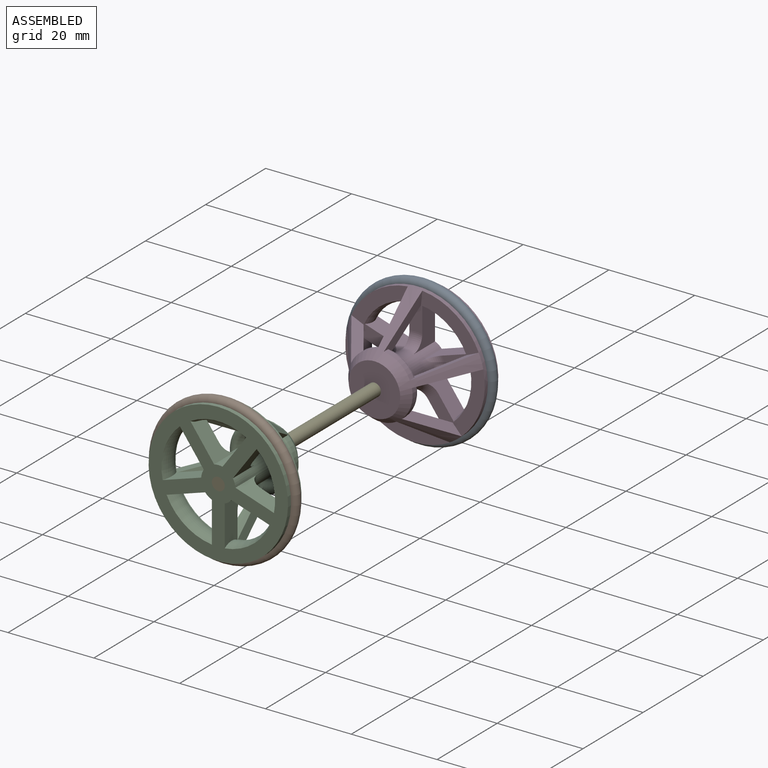
[diagram: assembled view]
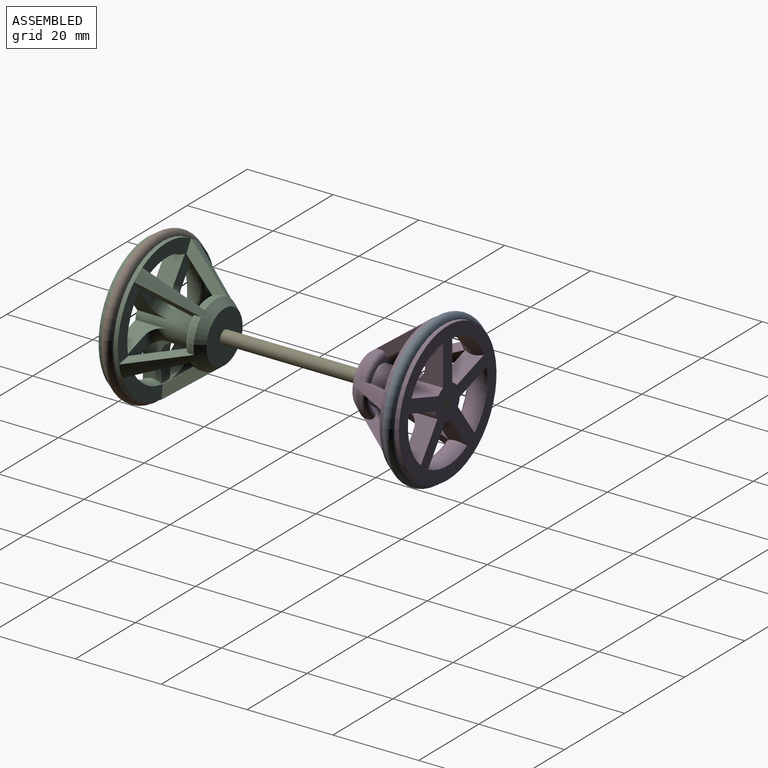
[diagram: assembled view, second angle]
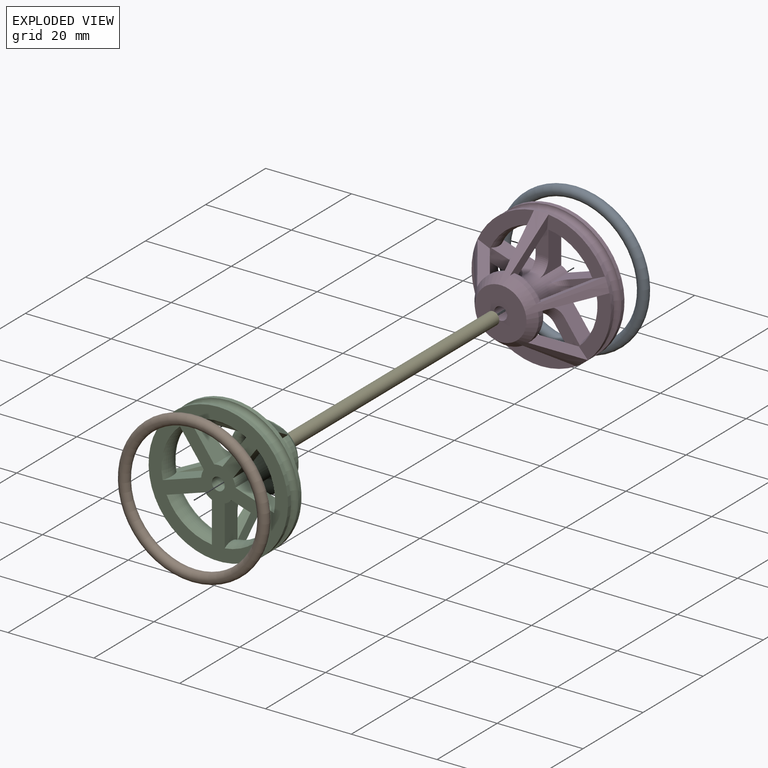
[diagram: exploded view]
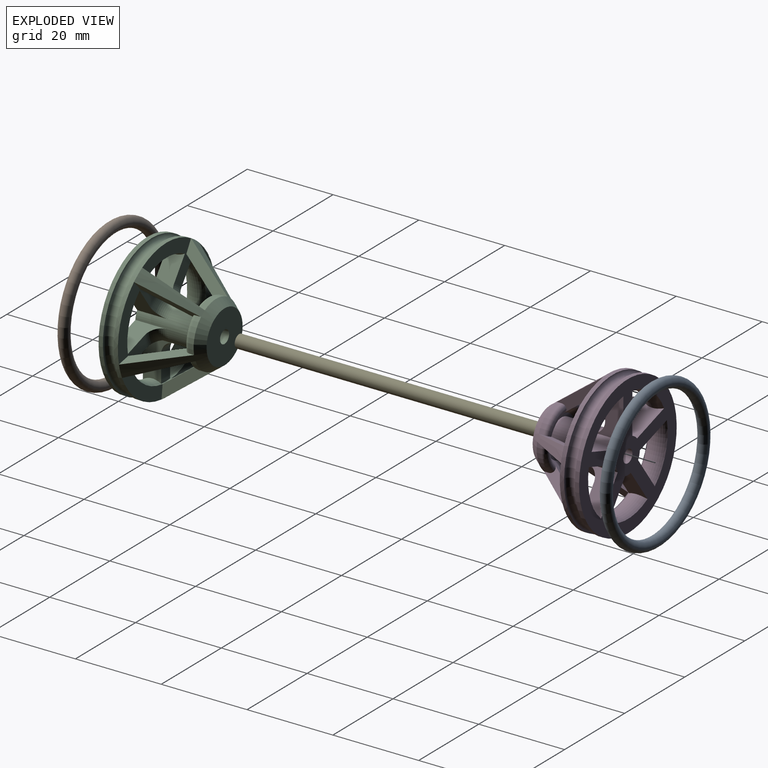
[diagram: exploded view, second angle]
ASSEMBLY  parts=5 mates=4
PART A: 1 faces, bbox 37.9x2.5x37.9 mm
  f0: torus R=16.25mm, axis (0,-1,0), area 801.9mm2
PART B: same geometry as A
PART C: 57 faces, bbox 37.1x18.4x37.1 mm
  f0: torus R=16.25mm, axis (0,1,0), area 0mm2, adj f1,f4,f43
  f1: torus R=16.25mm, axis (0,1,0), area 309.1mm2, adj f0,f3,f4,f32,f33,f34,f35,f36
  f2: cylinder r=4mm len=15.5mm, axis (0,-1,0), area 278.1mm2, adj f4,f11,f33,f34,f36,f37,f39,f40
  f3: cone r=14.26mm half-angle=37.2deg, axis (0,-1,0), area 181.7mm2, adj f1,f11,f12,f14,f15,f16,f17,f19
  f4: plane 32.5x32.5mm, normal (0,-1,0), area 461mm2, adj f0,f1,f2,f9,f10,f33,f34,f36
  f5: plane 12x12mm, normal (0,1,0), area 106mm2, adj f6,f10
  f6: cone r=16.25mm half-angle=37.2deg, axis (0,-1,0), area 285.1mm2, adj f5,f7,f12,f13,f14,f16,f17,f18
  f7: cylinder r=16.25mm len=32.5mm, axis (0,1,0), area 102.1mm2, adj f6,f8,f15,f19,f23,f27,f31
  f8: torus R=16.25mm, axis (0,1,0), area 381.3mm2, adj f7,f9
  f9: cylinder r=16.25mm len=32.5mm, axis (0,1,0), area 102.1mm2, adj f4,f8
  f10: cylinder r=1.5mm len=18mm, axis (0,-1,0), area 169.6mm2, adj f4,f5
  f11: plane 9.52x9.52mm, normal (0,-1,0), area 20.9mm2, adj f2,f3
  f12: plane 11.52x9.13mm, normal (0.87,0,0.5), area 31.4mm2, adj f3,f6,f13,f15,f56
  f13: cylinder r=7.5mm len=7.5mm, axis (0,1,0), area 9.1mm2, adj f6,f12,f14,f56
  f14: plane 11.52x9.13mm, normal (-0.87,0,0.5), area 31.4mm2, adj f3,f6,f13,f15,f56
  f15: plane 16.25x4.9mm, normal (0,1,0), area 48.3mm2, adj f3,f7,f12,f14
  f16: plane 11.52x9.63mm, normal (-0.41,0,-0.91), area 31.4mm2, adj f3,f6,f18,f19,f55
  f17: plane 11.52x10.49mm, normal (0.99,0,0.1), area 31.4mm2, adj f3,f6,f18,f19,f55
  f18: cylinder r=7.5mm len=6.07mm, axis (0,1,0), area 9.1mm2, adj f6,f16,f17,f55
  f19: plane 13.47x10.83mm, normal (0,1,0), area 48.3mm2, adj f3,f7,f16,f17
  f20: plane 11.52x7.84mm, normal (0.74,0,-0.67), area 31.4mm2, adj f3,f6,f22,f23,f54
  f21: plane 11.52x10.32mm, normal (0.21,0,0.98), area 31.4mm2, adj f3,f6,f22,f23,f54
  f22: cylinder r=7.5mm len=7.13mm, axis (0,1,0), area 9.1mm2, adj f6,f20,f21,f54
  f23: plane 15.45x7.48mm, normal (0,1,0), area 48.3mm2, adj f3,f7,f20,f21
  f24: plane 11.52x10.32mm, normal (-0.21,0,0.98), area 31.4mm2, adj f3,f6,f26,f27,f53
  f25: plane 11.52x7.84mm, normal (-0.74,0,-0.67), area 31.4mm2, adj f3,f6,f26,f27,f53
  f26: cylinder r=7.5mm len=7.13mm, axis (0,1,0), area 9.1mm2, adj f6,f24,f25,f53
  f27: plane 15.45x7.48mm, normal (0,1,0), area 48.3mm2, adj f3,f7,f24,f25
  f28: plane 11.52x10.49mm, normal (-0.99,0,0.1), area 31.4mm2, adj f3,f6,f30,f31,f52
  f29: plane 11.52x9.63mm, normal (0.41,0,-0.91), area 31.4mm2, adj f3,f6,f30,f31,f52
  f30: cylinder r=7.5mm len=6.07mm, axis (0,1,0), area 9.1mm2, adj f6,f28,f29,f52
  f31: plane 13.47x10.83mm, normal (0,1,0), area 48.3mm2, adj f3,f7,f28,f29
  f32: plane 6.24x3mm, normal (0,1,0), area 18.3mm2, adj f1,f33,f34,f51
  f33: plane 9.46x7.25mm, normal (-1,0,0), area 39.9mm2, adj f1,f2,f4,f32,f51
  f34: plane 9.46x7.25mm, normal (1,0,0), area 39.9mm2, adj f1,f2,f4,f32,f51
  f35: plane 6.78x4.76mm, normal (0,1,0), area 18.3mm2, adj f1,f36,f37,f50
  f36: plane 8.99x7.25mm, normal (0.31,0,0.95), area 39.9mm2, adj f1,f2,f4,f35,f50
  f37: plane 8.99x7.25mm, normal (-0.31,0,-0.95), area 39.9mm2, adj f1,f2,f4,f35,f50
  f38: plane 6.74x6.04mm, normal (0,1,0), area 18.3mm2, adj f1,f39,f40,f49
  f39: plane 7.65x7.25mm, normal (-0.81,0,0.59), area 39.9mm2, adj f1,f2,f4,f38,f49
  f40: plane 7.65x7.25mm, normal (0.81,0,-0.59), area 39.9mm2, adj f1,f2,f4,f38,f49
  f41: plane 6.74x6.04mm, normal (0,1,0), area 18.3mm2, adj f1,f42,f43,f48
  f42: plane 7.65x7.25mm, normal (-0.81,0,-0.59), area 39.9mm2, adj f1,f2,f4,f41,f48
  f43: plane 7.65x7.25mm, normal (0.81,0,0.59), area 39.9mm2, adj f0,f1,f2,f4,f41,f48
  f44: plane 6.78x4.76mm, normal (0,1,0), area 18.3mm2, adj f1,f45,f46,f47
  f45: plane 8.99x7.25mm, normal (-0.31,0,0.95), area 39.9mm2, adj f1,f2,f4,f44,f47
  f46: plane 8.99x7.25mm, normal (0.31,0,-0.95), area 39.9mm2, adj f1,f2,f4,f44,f47
  f47: torus R=7mm, axis (0,-1,0), area 14.4mm2, adj f2,f44,f45,f46
  f48: torus R=7mm, axis (0,-1,0), area 14.4mm2, adj f2,f41,f42,f43
  f49: torus R=7mm, axis (0,-1,0), area 14.4mm2, adj f2,f38,f39,f40
  f50: torus R=7mm, axis (0,-1,0), area 14.4mm2, adj f2,f35,f36,f37
  f51: torus R=7mm, axis (0,-1,0), area 14.4mm2, adj f2,f32,f33,f34
  f52: torus R=6.5mm, axis (0,1,0), area 17.6mm2, adj f3,f28,f29,f30
  f53: torus R=6.5mm, axis (0,1,0), area 17.6mm2, adj f3,f24,f25,f26
  f54: torus R=6.5mm, axis (0,1,0), area 17.6mm2, adj f3,f20,f21,f22
  f55: torus R=6.5mm, axis (0,1,0), area 17.6mm2, adj f3,f16,f17,f18
  f56: torus R=6.5mm, axis (0,1,0), area 17.6mm2, adj f3,f12,f13,f14
PART D: same geometry as C
PART E: 3 faces, bbox 3x70x3 mm
  f0: plane 3x3mm, normal (0,1,0), area 7.1mm2, adj f2
  f1: plane 3x3mm, normal (0,-1,0), area 7.1mm2, adj f2
  f2: cylinder r=1.5mm len=70mm, axis (0,-1,0), area 659.7mm2, adj f0,f1
PLACE A rot(axis=(1,0,0),180deg) t=(20,-65.5,60)mm
PLACE B t=(20,65.5,25)mm
PLACE C t=(-6.58,4.27,-3.9)mm
PLACE D rot(axis=(1,0,0),180deg) t=(-6.58,-4.27,88.9)mm
PLACE E at identity fixed
MATE fastened B.f0 <-> C.f0  axis (0,-1,0) through (-142.5,-32.75,42.5)mm
MATE fastened C.f0 <-> E.f2  axis (0,-1,0) through (-142.5,-35,42.5)mm
MATE fastened E.f2 <-> D.f0  axis (0,1,0) through (-142.5,35,42.5)mm
MATE fastened D.f0 <-> A.f0  axis (0,-1,0) through (-142.5,32.75,42.5)mm
